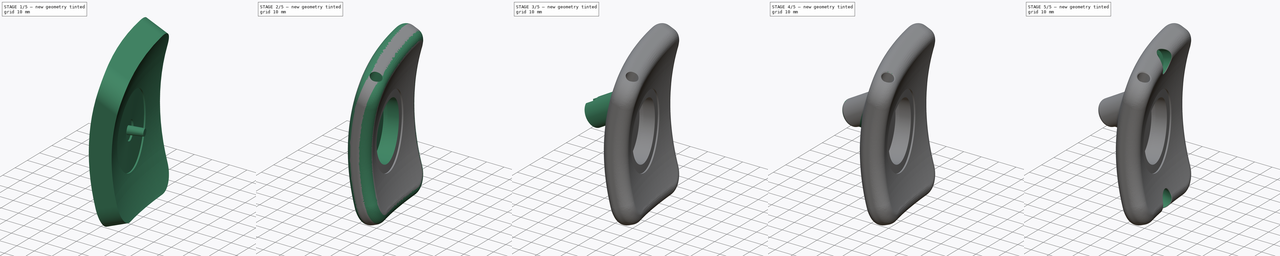
[diagram: build sequence overview — one tinted view per stage of 5, left to right]
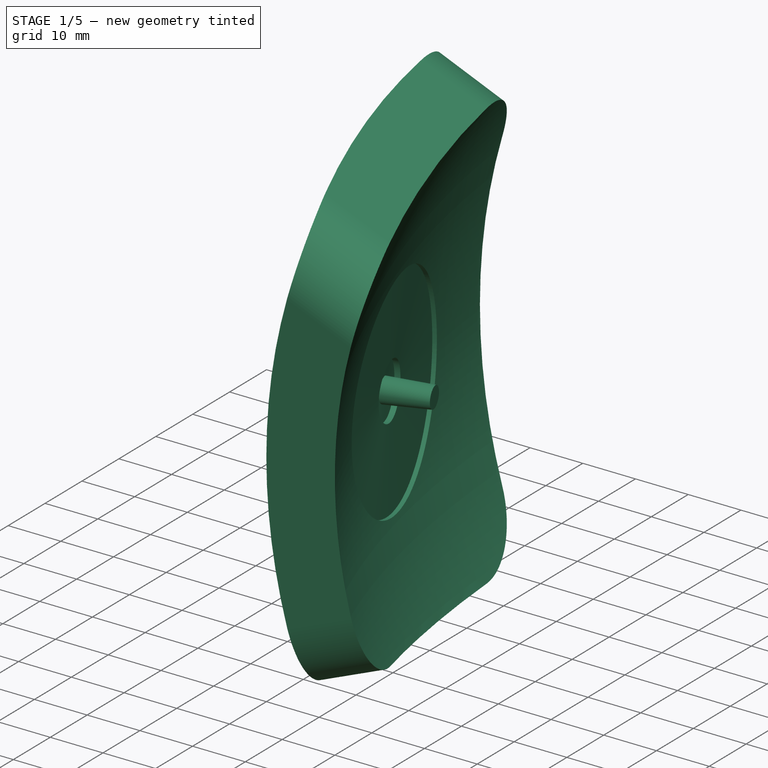
[diagram: stage 1 of 5 — iso view after this stage's code; geometry added in this stage tinted green]
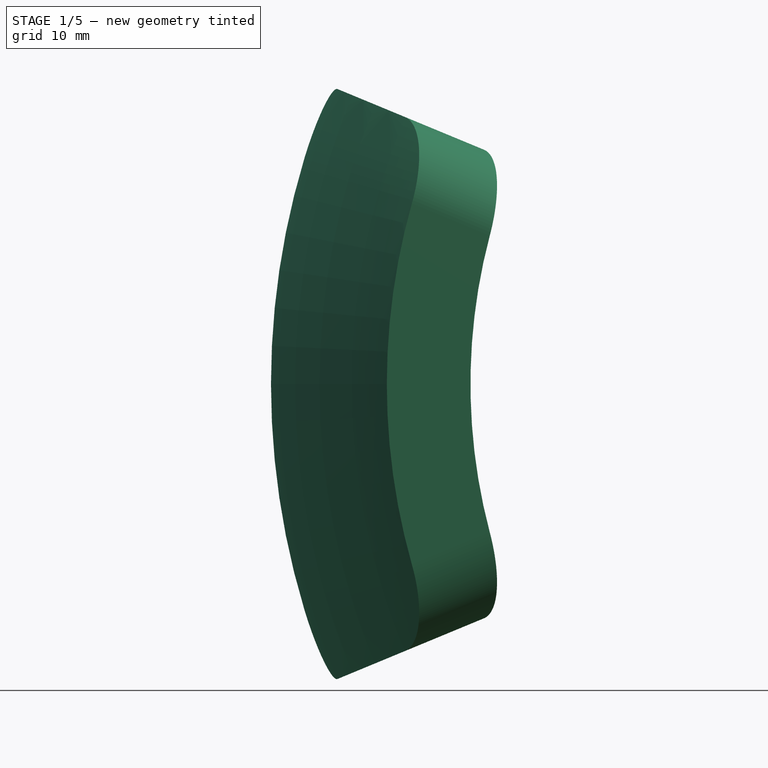
[diagram: stage 1 of 5 — front view after this stage's code; geometry added in this stage tinted green]
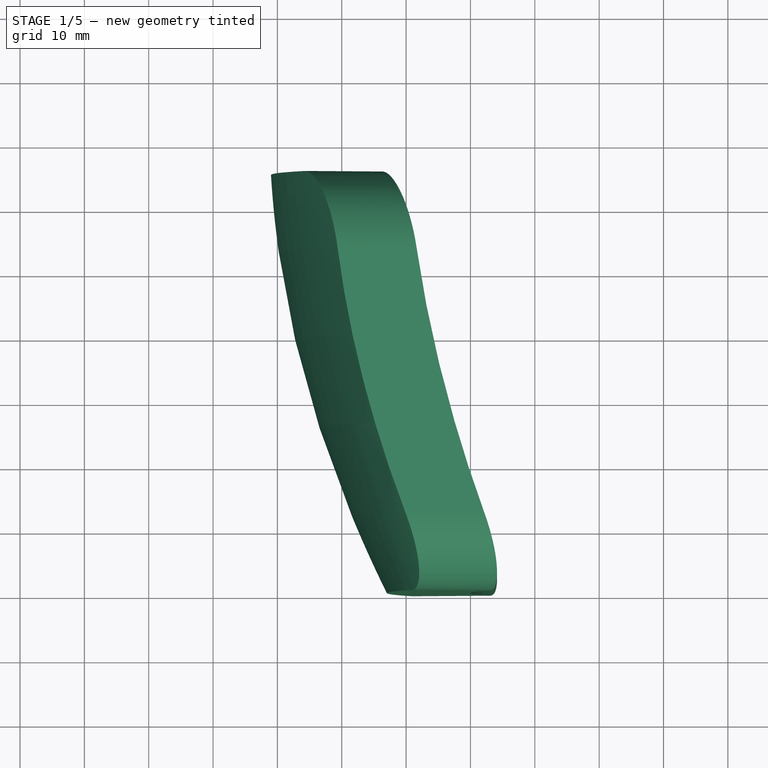
[diagram: stage 1 of 5 — top view after this stage's code; geometry added in this stage tinted green]
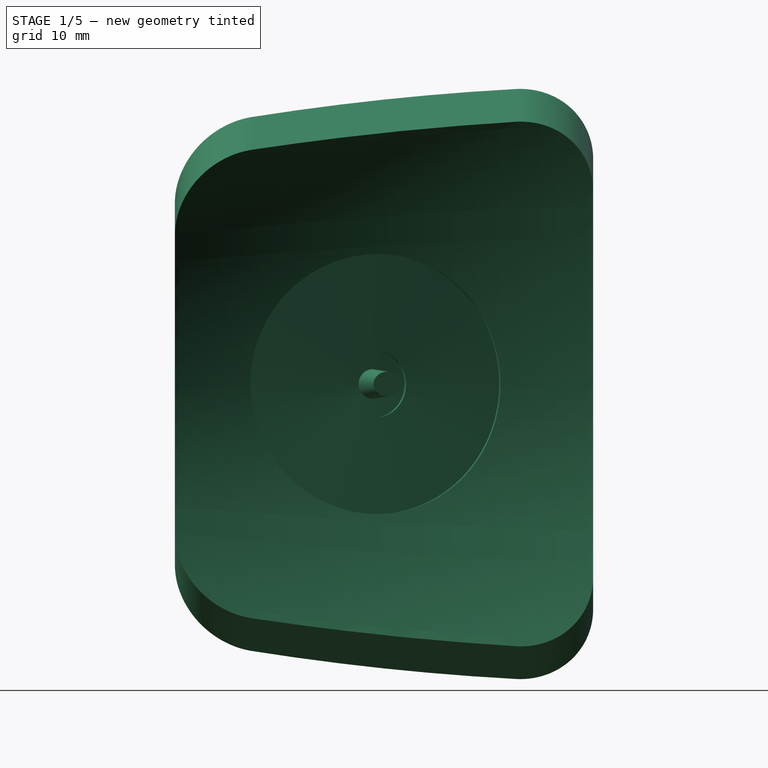
[diagram: stage 1 of 5 — right view after this stage's code; geometry added in this stage tinted green]
FCSTD DOCUMENT  (FreeCAD 0.17R13541 (Git))
Label: left_patch_v4
License: All rights reserved
LicenseURL: http://en.wikipedia.org/wiki/All_rights_reserved
objects: Sketcher::SketchObject×15, PartDesign::Plane×6, PartDesign::Fillet×6, PartDesign::Pocket×5, PartDesign::Line×2, PartDesign::Pad×2, PartDesign::SubtractiveLoft×2, PartDesign::Groove×2, PartDesign::Chamfer×2, PartDesign::Revolution×1, PartDesign::SubtractivePipe×1, PartDesign::Mirrored×1, PartDesign::Body×1
note: 59 computed .brp shape members not serialized (recipe doc carries the construction recipe); baked Part::Feature solids carry a one-line shape summary decoded from their .brp

FEATURE [Sketcher::SketchObject] Sketch
  MapMode = 5
  Support = -> [XY_Plane]
  sketch-geometry (14):
    g0: LineSegment StartX=-103 StartY=0 StartZ=0 EndX=-90 EndY=0 EndZ=0
    g1: LineSegment StartX=-121 StartY=65 StartZ=0 EndX=-108 EndY=65 EndZ=0
    g2: Circle [constr] CenterX=-121 CenterY=65 CenterZ=0 NormalX=0 NormalY=0 NormalZ=1 AngleXU=0 Radius=1
    g3: Circle [constr] CenterX=-119 CenterY=32.5 CenterZ=0 NormalX=0 NormalY=0 NormalZ=1 AngleXU=0 Radius=1
    g4: Circle [constr] CenterX=-103 CenterY=0 CenterZ=0 NormalX=0 NormalY=0 NormalZ=1 AngleXU=0 Radius=1
    g5: BSplineCurve PolesCount=3 KnotsCount=2 Degree=2 IsPeriodic=0
    g6: GeomPoint [constr] X=-121 Y=65 Z=0
    g7: GeomPoint [constr] X=-103 Y=0 Z=0
    g8: Circle [constr] CenterX=-108 CenterY=65 CenterZ=0 NormalX=0 NormalY=0 NormalZ=1 AngleXU=0 Radius=1
    g9: Circle [constr] CenterX=-105 CenterY=32.5 CenterZ=0 NormalX=0 NormalY=0 NormalZ=1 AngleXU=0 Radius=1
    g10: Circle [constr] CenterX=-90 CenterY=0 CenterZ=0 NormalX=0 NormalY=0 NormalZ=1 AngleXU=0 Radius=1
    g11: BSplineCurve PolesCount=3 KnotsCount=2 Degree=2 IsPeriodic=0
    g12: GeomPoint [constr] X=-108 Y=65 Z=0
    g13: GeomPoint [constr] X=-90 Y=0 Z=0
  constraints (32):
    c: Horizontal(g0)
    c: Horizontal(g1)
    c: Coincident(g2,g1)
    c: Radius(g2) = 1
    c: Equal(g2,g3)
    c: Equal(g2,g4)
    c: Coincident(g4,g0)
    c: InternalAlignment(g2,g5)
    c: InternalAlignment(g3,g5)
    c: InternalAlignment(g4,g5)
    c: InternalAlignment(g6,g5)
    c: InternalAlignment(g7,g5)
    c: Coincident(g8,g1)
    c: Radius(g8) = 1
    c: Equal(g8,g9)
    c: Equal(g8,g10)
    c: Coincident(g10,g0)
    c: InternalAlignment(g8,g11)
    c: InternalAlignment(g9,g11)
    c: InternalAlignment(g10,g11)
    c: InternalAlignment(g12,g11)
    c: InternalAlignment(g13,g11)
    c: DistanceX(g1,g1) = 13  'upper thickness'
    c: DistanceX(g0,g0) = 13  'lower thickness'
    c: DistanceY(g0,g1) = 65
    c: DistanceY(g0,g-1) = 0
    c: DistanceY(g0,g9) = 32.5
    c: DistanceY(g0,g3) = 32.5
    c: DistanceX(g0,g-1) = 90  'lower radius'
    c: DistanceX(g3,g9) = 14  'middle thickness'
    c: DistanceX(g9,g0) = 15  'middle radius difference'
    c: DistanceX(g1,g0) = 18  'upper radius difference'
FEATURE [PartDesign::Revolution] Revolution
  Angle = 45
  Axis = (0,1,0)
  Base = (0,0,0)
  Midplane = true
  Profile = -> Sketch
  ReferenceAxis = -> Sketch [V_Axis]
FEATURE [PartDesign::Line] DatumLine
  AttacherType = Attacher::AttachEngineLine
  AttachmentOffset = pos=(60,0,0) rot=(0,1,0;0.279253rad)
  MapMode = 29
  Placement = pos=(0,60,0) rot=(0.470251,0.624045,0.624045;2.26246rad)
  Support = -> [X_Axis]
FEATURE [PartDesign::Plane] DatumPlane001
  AttachmentOffset = pos=(0,0,-98) rot=(0,0,1;0rad)
  MapMode = 2
  Placement = pos=(-94.2036,32.9875,0) rot=(0.470251,0.624045,0.624045;2.26246rad)
  Support = -> [DatumLine]
FEATURE [Sketcher::SketchObject] Sketch017
  MapMode = 5
  Placement = pos=(-94.2036,32.9875,0) rot=(0.470251,0.624045,0.624045;2.26246rad)
  Support = -> [DatumPlane001]
  sketch-geometry (1):
    g0: Circle CenterX=0 CenterY=0 CenterZ=0 NormalX=0 NormalY=0 NormalZ=1 AngleXU=0 Radius=19
  constraints (2):
    c: Coincident(g0,g-1)
    c: Radius(g0) = 19
FEATURE [PartDesign::Pad] Pad001
  BaseFeature = -> Revolution
  Length = 20
  Length2 = 100
  Profile = -> Sketch017
  Type = 3
  UpToFace = -> Revolution [Face3]
FEATURE [Sketcher::SketchObject] Sketch018
  ExternalGeometry = -> [DatumLine]
  MapMode = 5
  Support = -> [XY_Plane]
  sketch-geometry (8):
    g0: LineSegment [constr] StartX=-100.16 StartY=31.2796 StartZ=0 EndX=-94.5921 EndY=11.8621 EndZ=0
    g1: LineSegment StartX=-94.5921 StartY=11.8621 StartZ=0 EndX=-95.7456 EndY=11.5313 EndZ=0
    g2: LineSegment StartX=-95.7456 StartY=11.5313 StartZ=0 EndX=-99.8802 EndY=25.9503 EndZ=0
    g3: LineSegment StartX=-99.8802 StartY=25.9503 StartZ=0 EndX=-100.841 EndY=25.6746 EndZ=0
    g4: LineSegment StartX=-100.841 StartY=25.6746 StartZ=0 EndX=-101.668 EndY=28.5584 EndZ=0
    g5: LineSegment StartX=-101.668 StartY=28.5584 StartZ=0 EndX=-91.8635 EndY=31.3699 EndZ=0
    g6: LineSegment StartX=-91.8635 StartY=31.3699 StartZ=0 EndX=-86.902 EndY=14.0672 EndZ=0
    g7: LineSegment StartX=-86.902 StartY=14.0672 StartZ=0 EndX=-94.5921 EndY=11.8621 EndZ=0
  constraints (24):
    c: PointOnObject(g0,g-3)
    c: Perpendicular(g-3,g0)
    c: Distance(g0) = 20.2
    c: Coincident(g0,g1)
    c: Coincident(g1,g2)
    c: Coincident(g2,g3)
    c: Coincident(g3,g4)
    c: Coincident(g4,g5)
    c: Coincident(g5,g6)
    c: Coincident(g6,g7)
    c: Coincident(g7,g1)
    c: Perpendicular(g0,g1)
    c: Perpendicular(g0,g3)
    c: Perpendicular(g0,g5)
    c: Perpendicular(g0,g7)
    c: Parallel(g6,g0)
    c: Parallel(g2,g0)
    c: Parallel(g4,g0)
    c: Distance(g1) = 1.2
    c: Distance(g2) = 15
    c: Distance(g3) = 1
    c: DistanceX(g0) = -100.16
    c: Distance(g6) = 18
    c: Distance(g7) = 8
FEATURE [PartDesign::SubtractivePipe] SubtractivePipe
  AuxilleryCurvelinear = true
  AuxillerySpineTangent = false
  BaseFeature = -> Pad001
  Binormal = (0,0,0)
  Mode = 0
  Profile = -> Sketch018
  Refine = true
  Spine = -> Pad001 [Edge13,Edge14]
  SpineTangent = false
  Transformation = 0
  Transition = 0
FEATURE [Sketcher::SketchObject] Sketch019
  MapMode = 5
  Placement = pos=(-94.2036,32.9875,0) rot=(0.470251,0.624045,0.624045;2.26246rad)
  Support = -> [DatumPlane001]
  sketch-geometry (1):
    g0: Circle CenterX=0 CenterY=0 CenterZ=0 NormalX=0 NormalY=0 NormalZ=1 AngleXU=0 Radius=16
  constraints (2):
    c: Coincident(g0,g-1)
    c: Radius(g0) = 16
FEATURE [PartDesign::Plane] DatumPlane002
  AttachmentOffset = pos=(0,0,-18) rot=(0,0,1;0rad)
  MapMode = 4
  Placement = pos=(4.96147,42.6973,0) rot=(-0.515639,-0.684276,-0.515639;1.9414rad)
  Support = -> [DatumLine]
FEATURE [Sketcher::SketchObject] Sketch027
  MapMode = 5
  Placement = pos=(4.96147,42.6973,0) rot=(-0.515639,-0.684276,-0.515639;1.9414rad)
  Support = -> [DatumPlane002]
  sketch-geometry (1):
    g0: Circle CenterX=0 CenterY=-113.122 CenterZ=0 NormalX=0 NormalY=0 NormalZ=1 AngleXU=0 Radius=1.5
  constraints (2):
    c: PointOnObject(g0,g-2)
    c: Radius(g0) = 1.5
FEATURE [PartDesign::Plane] DatumPlane003
  AttachmentOffset = pos=(0,0,0) rot=(0,1,0;0.05236rad)
  MapMode = 5
  Placement = pos=(0,0,0) rot=(0,1,0;0.05236rad)
  Support = -> [XY_Plane]
FEATURE [PartDesign::Plane] DatumPlane004
  AttachmentOffset = pos=(0,0,123) rot=(0,-1,0;0.785398rad)
  MapMode = 5
  Placement = pos=(0,0,123) rot=(0,-1,0;0.785398rad)
  Support = -> [XY_Plane]
FEATURE [PartDesign::Line] DatumLine001
  AttacherType = Attacher::AttachEngineLine
  AttachmentOffset = pos=(5,0,-21) rot=(1,0,0;1.5708rad)
  MapMode = 16
  Placement = pos=(5.78838,39.8135,5) rot=(0.137845,-0.980815,0.137845;1.59017rad)
  Support = -> [DatumLine]
FEATURE [PartDesign::Fillet] Fillet019
  Base = -> SubtractivePipe [Edge7,Edge6,Edge10,Edge9]
  BaseFeature = -> SubtractivePipe
  Radius = 12
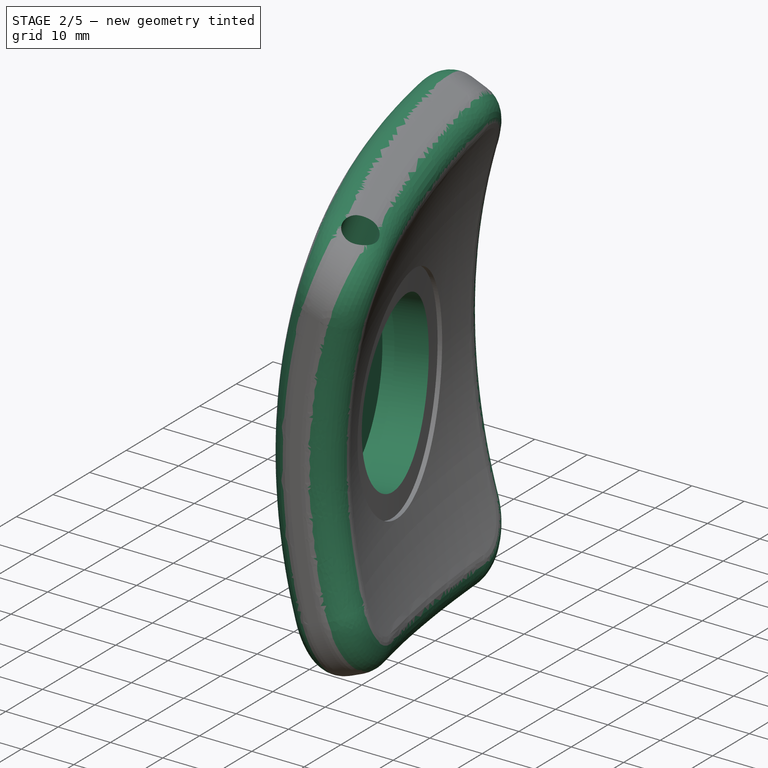
[diagram: stage 2 of 5 — iso view after this stage's code; geometry added in this stage tinted green]
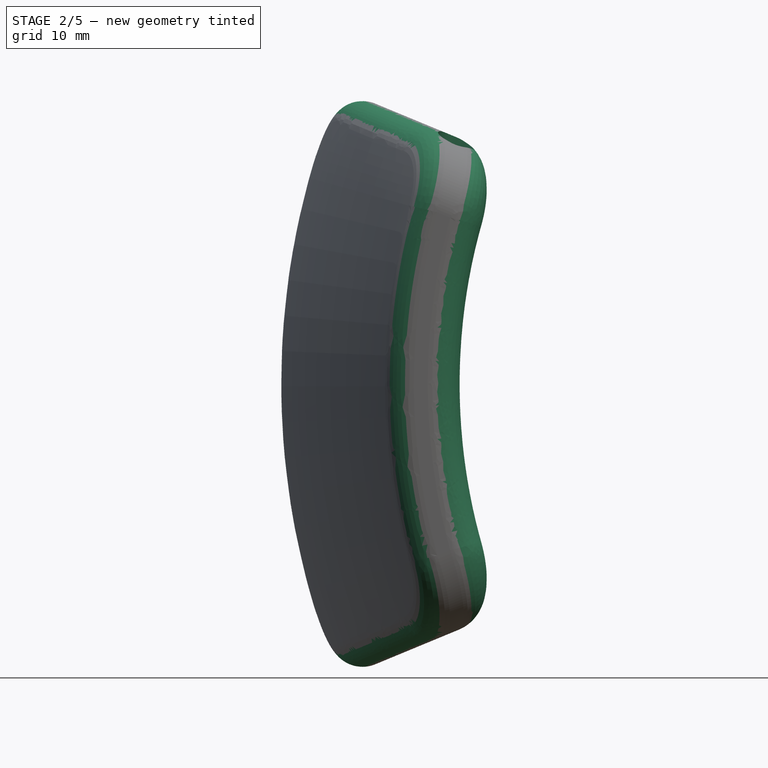
[diagram: stage 2 of 5 — front view after this stage's code; geometry added in this stage tinted green]
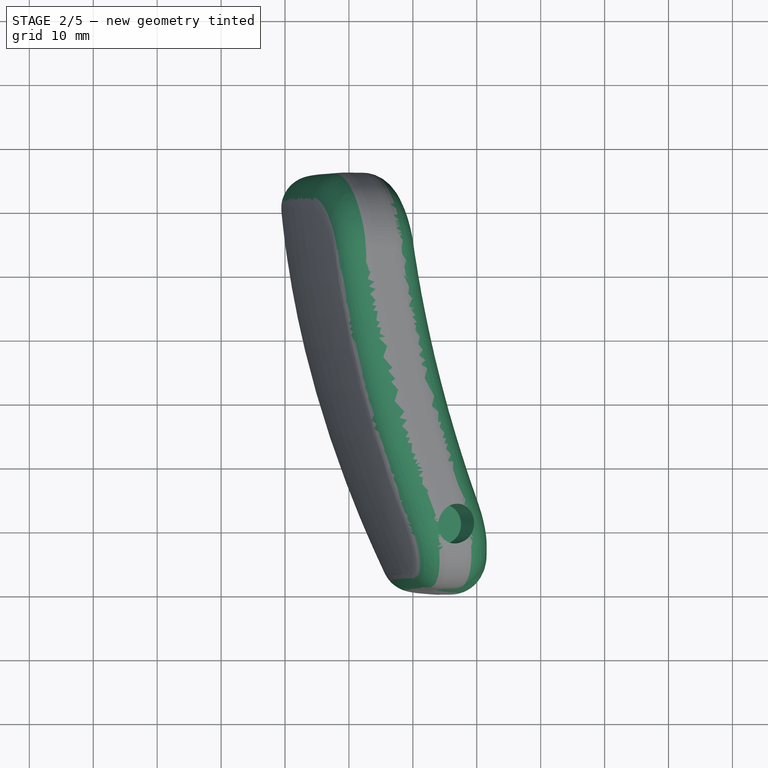
[diagram: stage 2 of 5 — top view after this stage's code; geometry added in this stage tinted green]
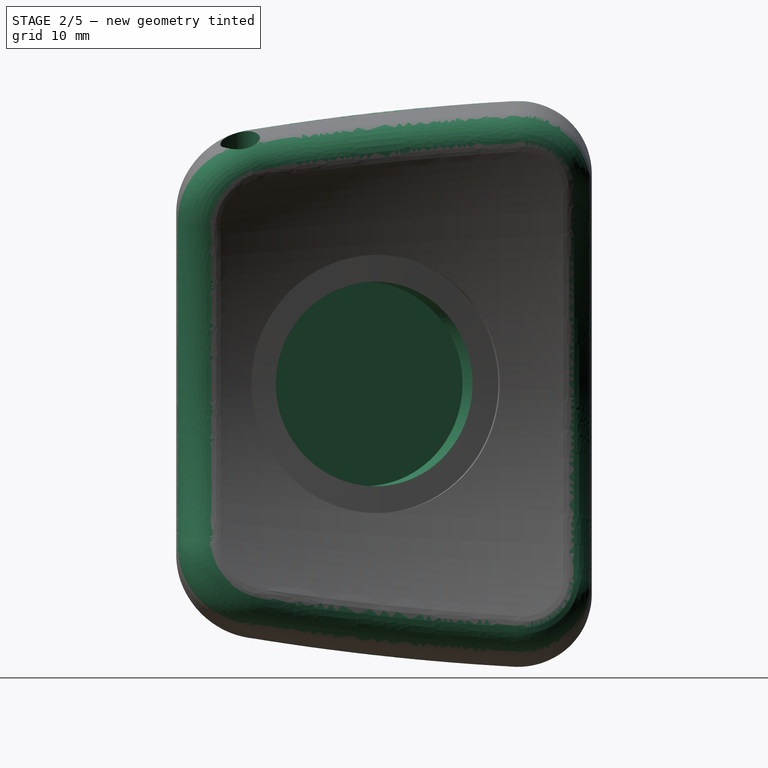
[diagram: stage 2 of 5 — right view after this stage's code; geometry added in this stage tinted green]
FEATURE [PartDesign::Pocket] Pocket007
  BaseFeature = -> Fillet019
  Length = 30
  Length2 = 100
  Midplane = true
  Profile = -> Sketch019
  Refine = true
  Type = 0
FEATURE [Sketcher::SketchObject] Sketch020
  ExternalGeometry = -> [Pocket007]
  MapMode = 5
  Placement = pos=(-92.725,-26.5885,0) rot=(0.470251,0.624045,0.624045;2.26246rad)
  Support = -> [Pocket007]
  sketch-geometry (2):
    g0: Circle CenterX=57.6757 CenterY=0 CenterZ=0 NormalX=0 NormalY=0 NormalZ=1 AngleXU=0 Radius=16
    g1: Circle CenterX=57.6757 CenterY=0 CenterZ=0 NormalX=0 NormalY=0 NormalZ=1 AngleXU=0 Radius=18
  constraints (4):
    c: Coincident(g0,g-3)
    c: Coincident(g1,g0)
    c: Radius(g0) = 16
    c: Radius(g1) = 18
FEATURE [PartDesign::Pocket] Pocket008
  BaseFeature = -> Pocket007
  Length = 2
  Length2 = 2
  Profile = -> Sketch020
  Refine = true
  Type = 4
FEATURE [PartDesign::Fillet] Fillet  label="Vorderkannte innen"
  Base = -> Pocket008 [Edge12,Edge11]
  BaseFeature = -> Pocket008
  Radius = 5
FEATURE [PartDesign::Fillet] Fillet015  label="Vorderkante aussen"
  Base = -> Fillet [Edge13]
  BaseFeature = -> Fillet
  Radius = 5
FEATURE [Sketcher::SketchObject] Sketch025
  MapMode = 5
  Placement = pos=(0,0,0) rot=(0,1,0;0.392699rad)
  Support = -> [Fillet015]
  sketch-geometry (1):
    g0: Circle CenterX=-100.7 CenterY=10 CenterZ=0 NormalX=0 NormalY=0 NormalZ=1 AngleXU=0 Radius=3.1
  constraints (3):
    c: Radius(g0) = 3.1
    c: DistanceY(g-1,g0) = 10
    c: DistanceX(g0,g-1) = 100.7
FEATURE [PartDesign::Pocket] Pocket012
  BaseFeature = -> Fillet015
  Length = 6
  Length2 = 100
  Profile = -> Sketch025
  Type = 0
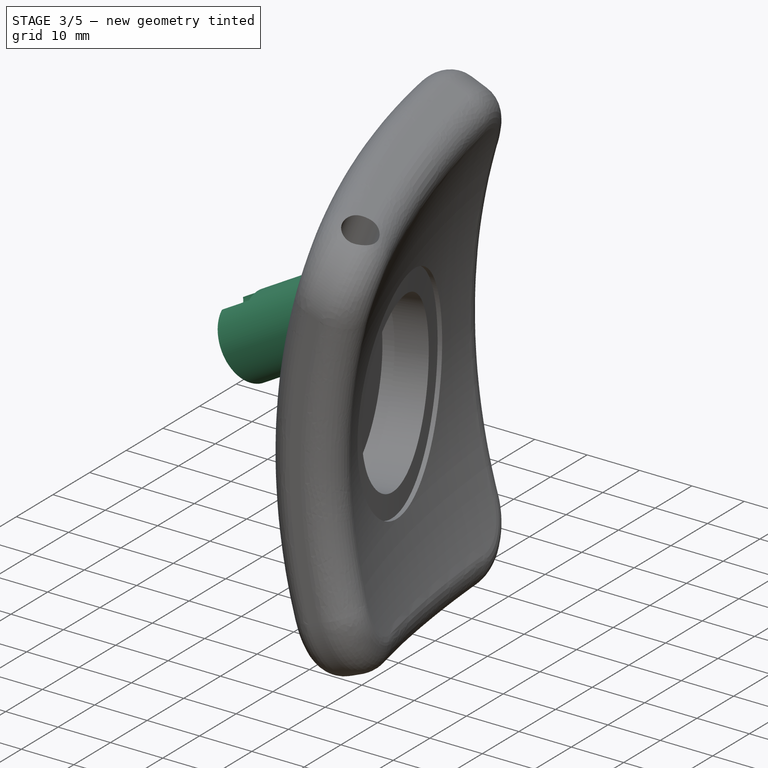
[diagram: stage 3 of 5 — iso view after this stage's code; geometry added in this stage tinted green]
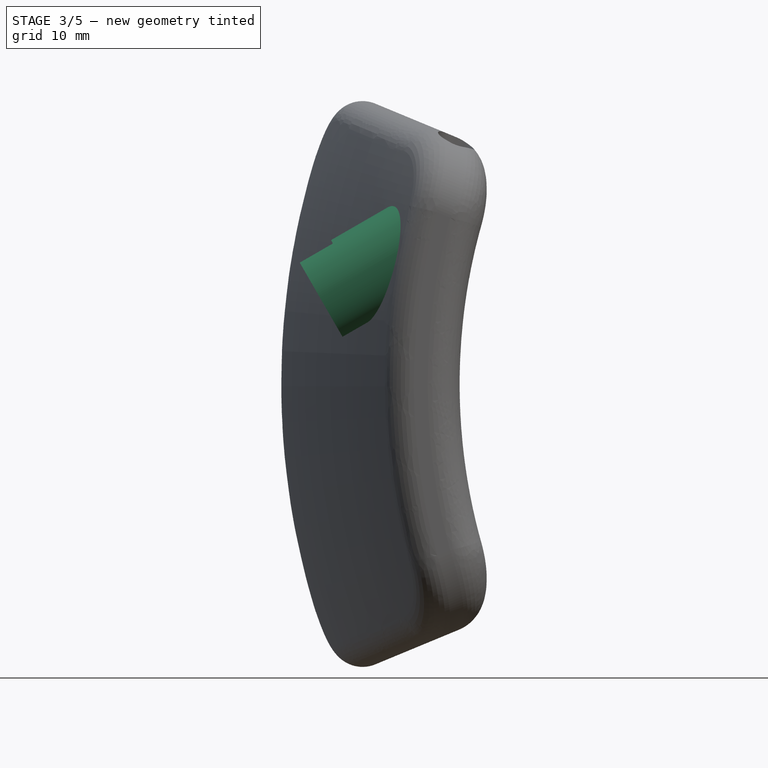
[diagram: stage 3 of 5 — front view after this stage's code; geometry added in this stage tinted green]
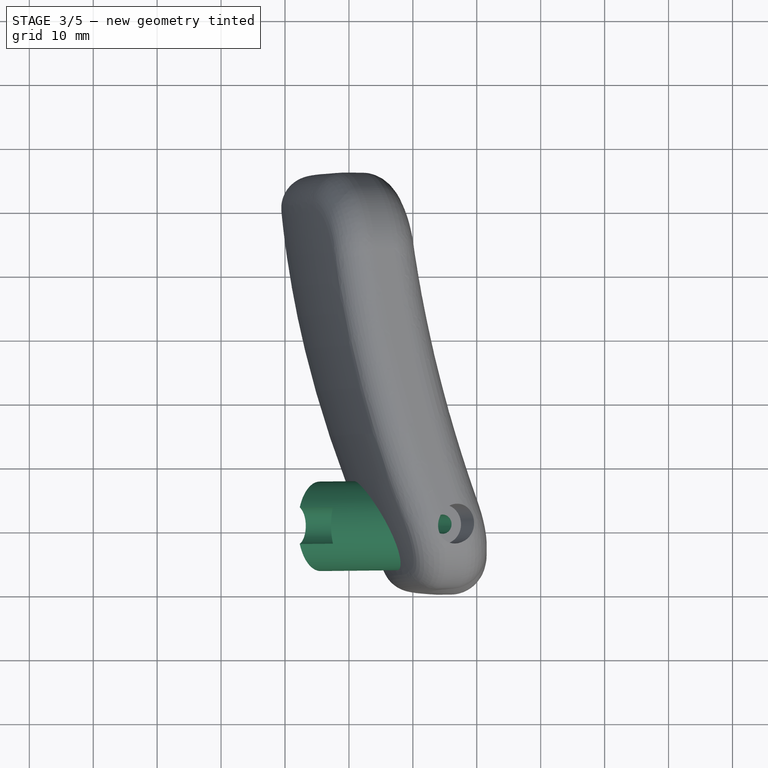
[diagram: stage 3 of 5 — top view after this stage's code; geometry added in this stage tinted green]
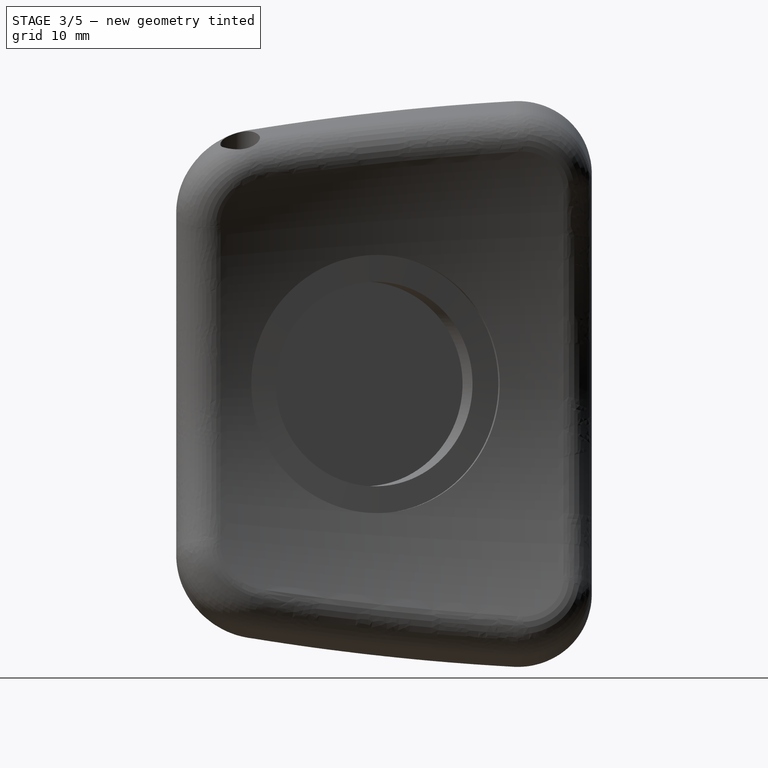
[diagram: stage 3 of 5 — right view after this stage's code; geometry added in this stage tinted green]
FEATURE [Sketcher::SketchObject] Sketch026
  ExternalGeometry = -> [Pocket012]
  MapMode = 5
  Placement = pos=(-2.2961,0,-5.54328) rot=(0,1,0;0.392699rad)
  Support = -> [Pocket012]
  sketch-geometry (1):
    g0: Circle CenterX=-100.7 CenterY=10 CenterZ=0 NormalX=0 NormalY=0 NormalZ=1 AngleXU=0 Radius=1.5
  constraints (2):
    c: Radius(g0) = 1.5
    c: Coincident(g0,g-4)
FEATURE [PartDesign::Pocket] Pocket013
  BaseFeature = -> Pocket012
  Length = 3
  Length2 = 0.5
  Profile = -> Sketch027
  Type = 4
FEATURE [PartDesign::Plane] DatumPlane
  AttachmentOffset = pos=(0,0,-95) rot=(0,1,0;0.523599rad)
  MapMode = 5
  Placement = pos=(-54.5,0,-90.47) rot=(0,1,0;1.0472rad)
  Support = -> [Pocket013]
FEATURE [Sketcher::SketchObject] Sketch028
  MapMode = 5
  Placement = pos=(-54.5,0,-90.47) rot=(0,1,0;1.0472rad)
  Support = -> [DatumPlane]
  sketch-geometry (1):
    g0: Circle CenterX=-120 CenterY=10 CenterZ=0 NormalX=0 NormalY=0 NormalZ=1 AngleXU=0 Radius=7
  constraints (3):
    c: Radius(g0) = 7
    c: DistanceY(g-1,g0) = 10
    c: DistanceX(g0,g-1) = 120
FEATURE [PartDesign::Pad] Pad
  BaseFeature = -> Pocket013
  Length = 30
  Length2 = 100
  Profile = -> Sketch028
  Type = 2
FEATURE [Sketcher::SketchObject] Sketch029
  ExternalGeometry = -> [Pad]
  MapMode = 5
  Placement = pos=(-80.0497,0,-46.2167) rot=(0.654654,-0.654654,-0.377964;2.41886rad)
  Support = -> [Pad]
  sketch-geometry (1):
    g0: Circle CenterX=-10 CenterY=76.5 CenterZ=0 NormalX=0 NormalY=0 NormalZ=1 AngleXU=0 Radius=3.1
  constraints (2):
    c: Coincident(g0,g-3)
    c: Radius(g0) = 3.1
FEATURE [PartDesign::Pocket] Pocket
  BaseFeature = -> Pad
  Length = 6
  Length2 = 100
  Profile = -> Sketch029
  Type = 0
FEATURE [Sketcher::SketchObject] Sketch030
  ExternalGeometry = -> [Pocket]
  MapMode = 5
  Placement = pos=(-74.8535,0,-43.2167) rot=(-0.654654,0.654654,0.377964;3.86433rad)
  Support = -> [Pocket]
  sketch-geometry (1):
    g0: Circle CenterX=-10 CenterY=76.5 CenterZ=0 NormalX=0 NormalY=0 NormalZ=1 AngleXU=0 Radius=1.5
  constraints (2):
    c: Coincident(g0,g-3)
    c: Radius(g0) = 1.5
FEATURE [PartDesign::SubtractiveLoft] SubtractiveLoft
  BaseFeature = -> Pocket
  Closed = false
  Profile = -> Sketch026
  Ruled = false
  Sections = -> [Sketch030]
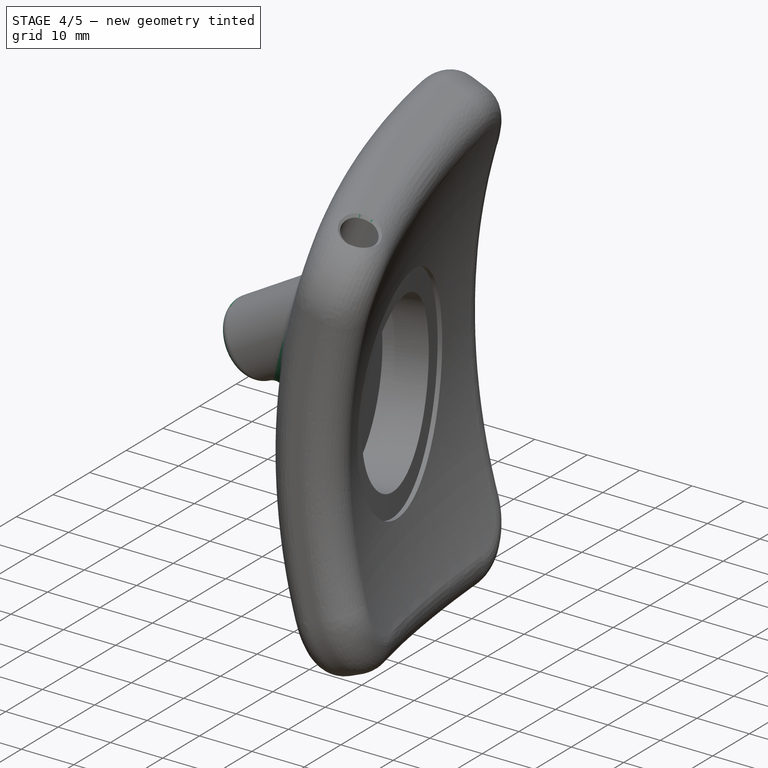
[diagram: stage 4 of 5 — iso view after this stage's code; geometry added in this stage tinted green]
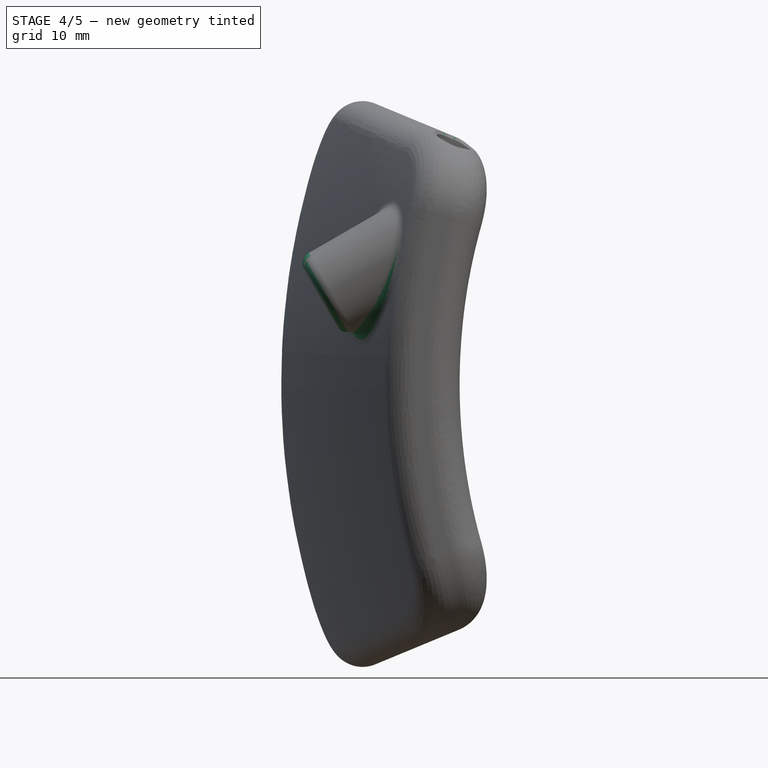
[diagram: stage 4 of 5 — front view after this stage's code; geometry added in this stage tinted green]
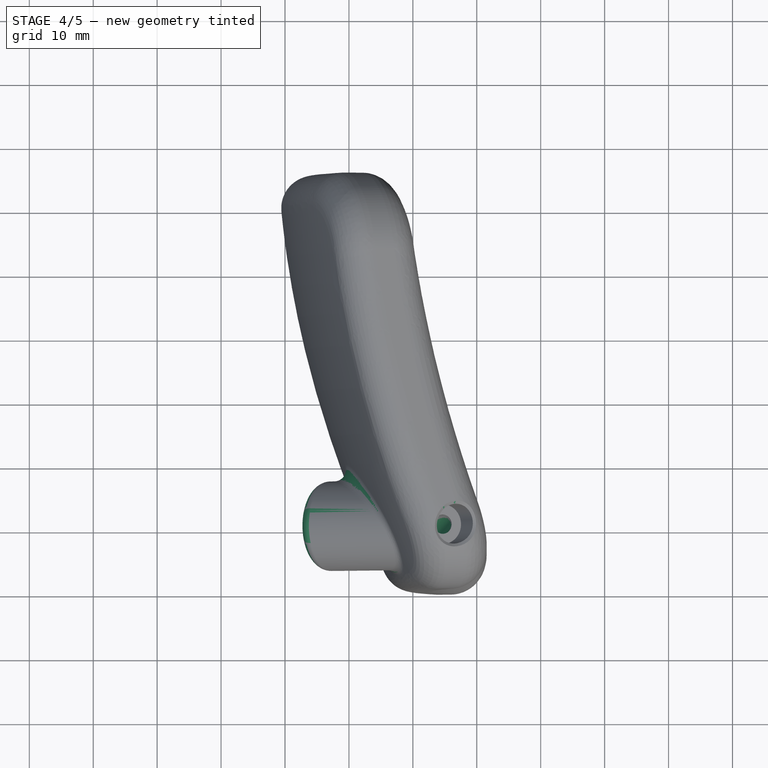
[diagram: stage 4 of 5 — top view after this stage's code; geometry added in this stage tinted green]
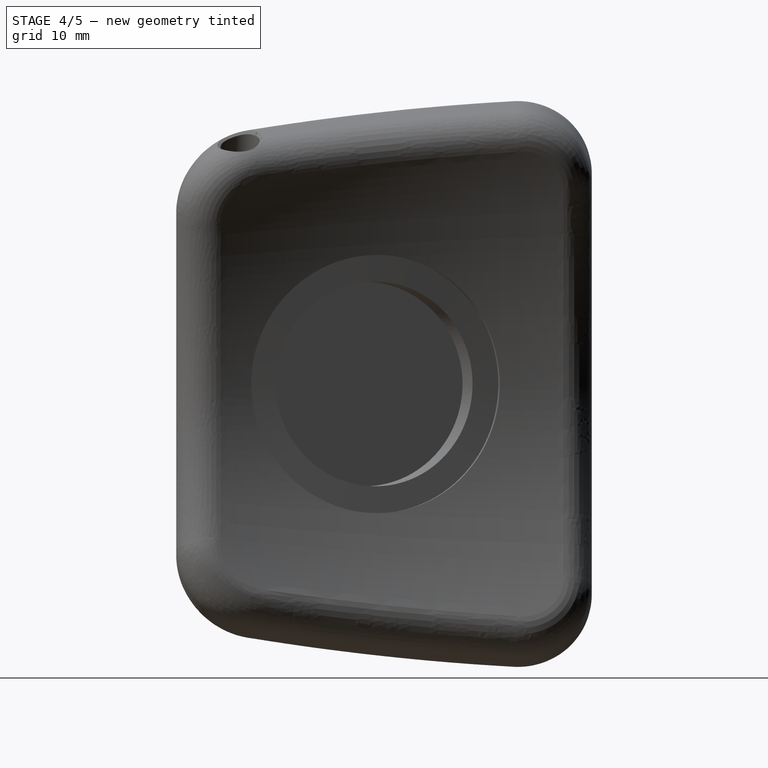
[diagram: stage 4 of 5 — right view after this stage's code; geometry added in this stage tinted green]
FEATURE [Sketcher::SketchObject] Sketch033
  ExternalGeometry = -> [SubtractiveLoft]
  MapMode = 5
  Placement = pos=(-10.1092,35.2549,0) rot=(-0.09889,0.703641,0.703641;3.33873rad)
  Support = -> [SubtractiveLoft]
  sketch-geometry (1):
    g0: Circle CenterX=96.5841 CenterY=0 CenterZ=0 NormalX=0 NormalY=0 NormalZ=1 AngleXU=0 Radius=1.5
  constraints (1):
    c: Radius(g0) = 1.5
FEATURE [PartDesign::Groove] Groove
  Angle = 90
  Axis = (-0.961262,-0.275637,0)
  Base = (5.78838,39.8135,5)
  BaseFeature = -> SubtractiveLoft
  Profile = -> Sketch033
  ReferenceAxis = -> DatumLine001
FEATURE [Sketcher::SketchObject] Sketch034
  ExternalGeometry = -> [Groove]
  MapMode = 5
  Placement = pos=(-2.2961,0,-5.54328) rot=(0,1,0;0.392699rad)
  Support = -> [Groove]
  sketch-geometry (1):
    g0: Circle CenterX=-100.7 CenterY=10 CenterZ=0 NormalX=0 NormalY=0 NormalZ=1 AngleXU=0 Radius=1.51
  constraints (2):
    c: Coincident(g0,g-3)
    c: Radius(g0) = 1.51
FEATURE [Sketcher::SketchObject] Sketch035
  ExternalGeometry = -> [Groove]
  MapMode = 5
  Placement = pos=(-92.725,-26.5885,0) rot=(0.470251,0.624045,0.624045;2.26246rad)
  Support = -> [Groove]
  sketch-geometry (1):
    g0: Circle CenterX=-101.574 CenterY=-3.82646 CenterZ=0 NormalX=0 NormalY=0 NormalZ=1 AngleXU=0 Radius=1.5
  constraints (1):
    c: Radius(g0) = 1.5
FEATURE [PartDesign::SubtractiveLoft] SubtractiveLoft001
  BaseFeature = -> Groove
  Closed = false
  Profile = -> Sketch035
  Refine = true
  Ruled = true
  Sections = -> [Sketch034]
FEATURE [PartDesign::Chamfer] Chamfer
  Base = -> SubtractiveLoft001 [Edge43,Edge76]
  BaseFeature = -> SubtractiveLoft001
  Size = 0.5
FEATURE [PartDesign::Fillet] Fillet017
  Base = -> Chamfer [Edge88]
  BaseFeature = -> Chamfer
  Radius = 2
FEATURE [PartDesign::Fillet] Fillet018
  Base = -> Fillet017 [Edge3]
  BaseFeature = -> Fillet017
  Radius = 2
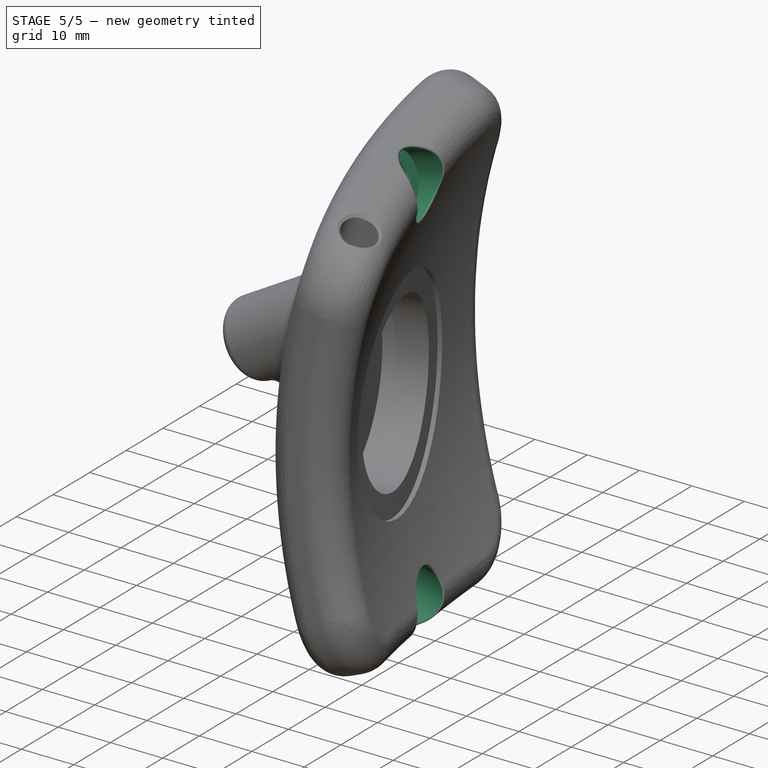
[diagram: stage 5 of 5 — iso view after this stage's code; geometry added in this stage tinted green]
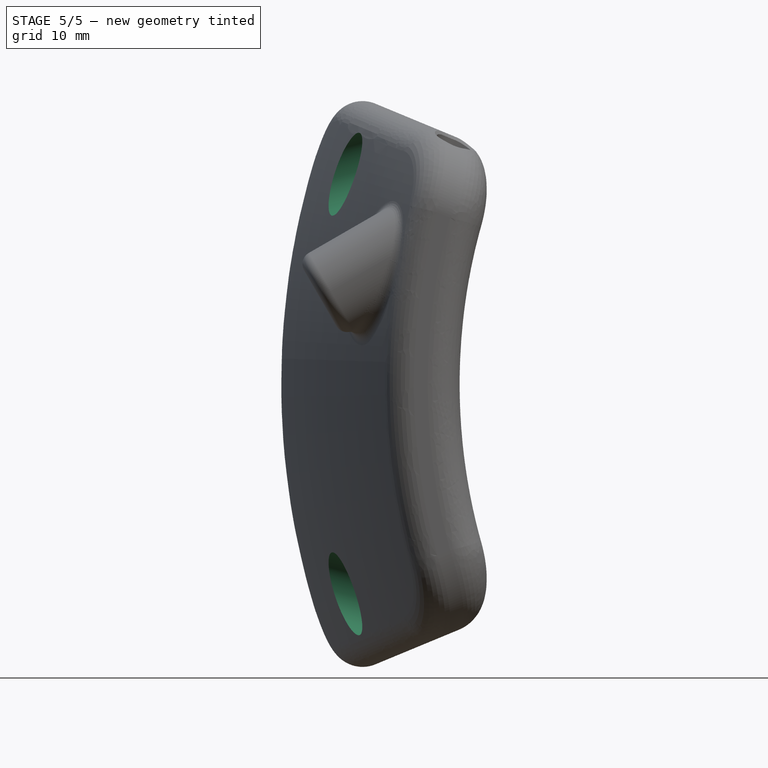
[diagram: stage 5 of 5 — front view after this stage's code; geometry added in this stage tinted green]
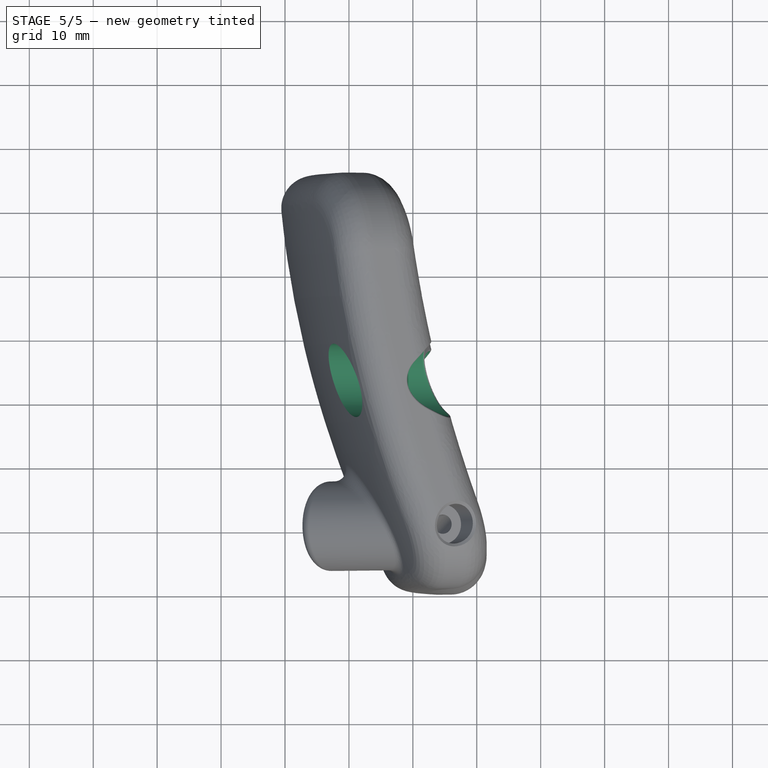
[diagram: stage 5 of 5 — top view after this stage's code; geometry added in this stage tinted green]
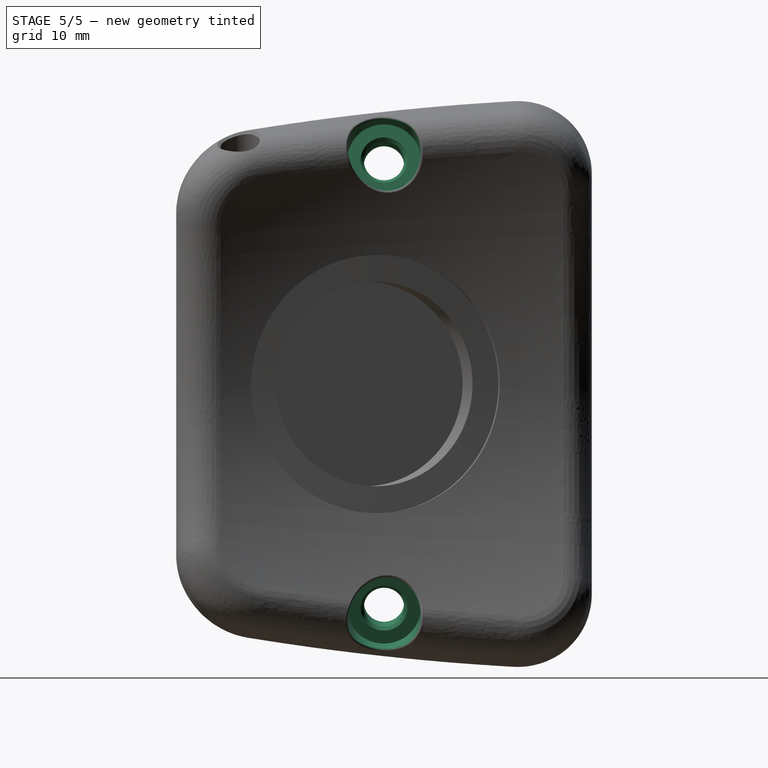
[diagram: stage 5 of 5 — right view after this stage's code; geometry added in this stage tinted green]
FEATURE [PartDesign::Plane] DatumPlane005
  AttachmentOffset = pos=(0,0,-32.5) rot=(0,0,1;0rad)
  MapMode = 5
  Placement = pos=(0,32.5,3e-12) rot=(1,0,0;1.5708rad)
  Support = -> [XZ_Plane]
FEATURE [Sketcher::SketchObject] Sketch036
  MapMode = 5
  Placement = pos=(0,32.5,3e-12) rot=(1,0,0;1.5708rad)
  Support = -> [DatumPlane005]
  sketch-geometry (8):
    g0: LineSegment StartX=-118.637 StartY=30.6472 StartZ=0 EndX=-80 EndY=41 EndZ=0
    g1: LineSegment StartX=-80 StartY=41 StartZ=0 EndX=-81.4882 EndY=46.5541 EndZ=0
    g2: LineSegment StartX=-81.4882 StartY=46.5541 StartZ=0 EndX=-103.705 EndY=40.6012 EndZ=0
    g3: LineSegment StartX=-103.705 StartY=40.6012 StartZ=0 EndX=-103.032 EndY=38.0898 EndZ=0
    g4: LineSegment StartX=-103.032 StartY=38.0898 StartZ=0 EndX=-106.895 EndY=37.0546 EndZ=0
    g5: LineSegment StartX=-106.895 StartY=37.0546 StartZ=0 EndX=-107.568 EndY=39.566 EndZ=0
    g6: LineSegment StartX=-107.568 StartY=39.566 StartZ=0 EndX=-120.125 EndY=36.2013 EndZ=0
    g7: LineSegment StartX=-120.125 StartY=36.2013 StartZ=0 EndX=-118.637 EndY=30.6472 EndZ=0
  constraints (24):
    c: Coincident(g0,g1)
    c: Coincident(g1,g2)
    c: Parallel(g2,g0)
    c: Perpendicular(g0,g1)
    c: Coincident(g2,g3)
    c: Coincident(g3,g4)
    c: Coincident(g4,g5)
    c: Parallel(g5,g1)
    c: Parallel(g4,g0)
    c: Parallel(g1,g3)
    c: Coincident(g5,g6)
    c: Coincident(g6,g7)
    c: Coincident(g7,g0)
    c: Parallel(g7,g1)
    c: Parallel(g6,g0)
    c: Angle(g-1,g0) = 0.261799
    c: Distance(g4) = 4
    c: Distance(g3,g0) = 3.15
    c: Distance(g7) = 5.75
    c: Distance(g6) = 13
    c: Distance(g0) = 40
    c: Distance(g1) = 5.75
    c: DistanceX(g0) = -80
    c: DistanceY(g0) = 41
FEATURE [PartDesign::Groove] Groove001
  Angle = 360
  Axis = (0.965926,0,0.258819)
  Base = (-118.637,32.5,30.6472)
  BaseFeature = -> Fillet018
  Profile = -> Sketch036
  ReferenceAxis = -> Sketch036 [Edge1]
  Refine = true
  Reversed = true
FEATURE [PartDesign::Mirrored] Mirrored
  BaseFeature = -> Groove001
  MirrorPlane = -> XY_Plane
  Originals = -> [Groove001]
  Refine = true
FEATURE [PartDesign::Chamfer] Chamfer001
  Base = -> Mirrored [Face43,Face50]
  BaseFeature = -> Mirrored
  Size = 0.5
FEATURE [PartDesign::Fillet] Fillet020
  Base = -> Chamfer001 [Edge108,Edge129]
  BaseFeature = -> Chamfer001
  Radius = 0.3
FEATURE [PartDesign::Body] Body
  Group = -> [Sketch,Revolution,DatumLine,DatumPlane001,Sketch017,Pad001,Sketch018,SubtractivePipe,Sketch019,Fillet019,Pocket007,Sketch020,Pocket008,Fillet,Fillet015,DatumPlane,Sketch025,Pocket012,Sketch026,DatumPlane002,Sketch027,Pocket013,Sketch028,Pad,Sketch029,Pocket,Sketch030,SubtractiveLoft,DatumPlane003,DatumPlane004,Sketch033,DatumLine001,Groove,Sketch034,Sketch035,SubtractiveLoft001,Chamfer,Fillet017,+7 more]
  Origin = -> Origin
  Tip = -> Fillet020
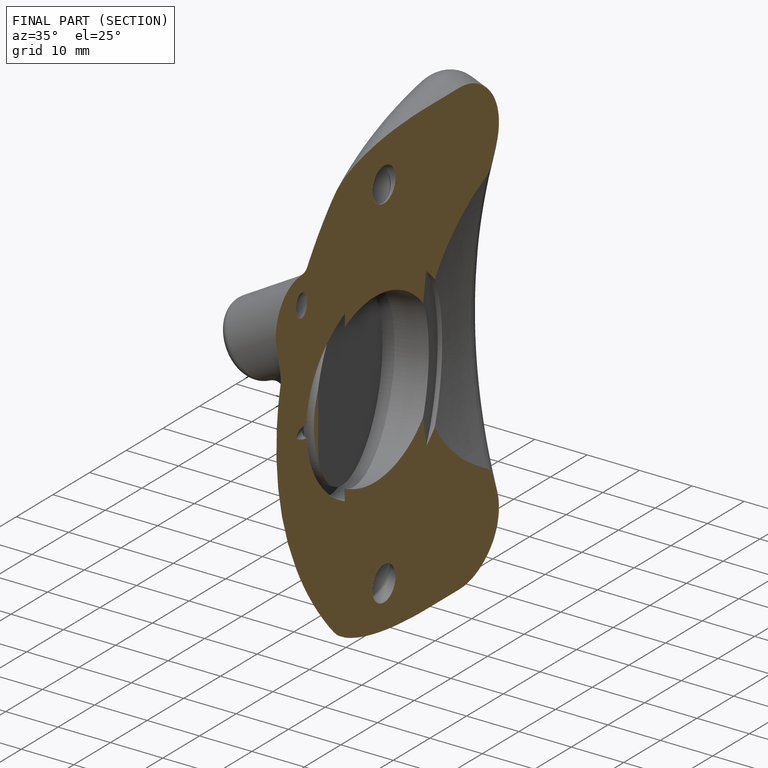
[diagram: finished part — half-section view (interior)]
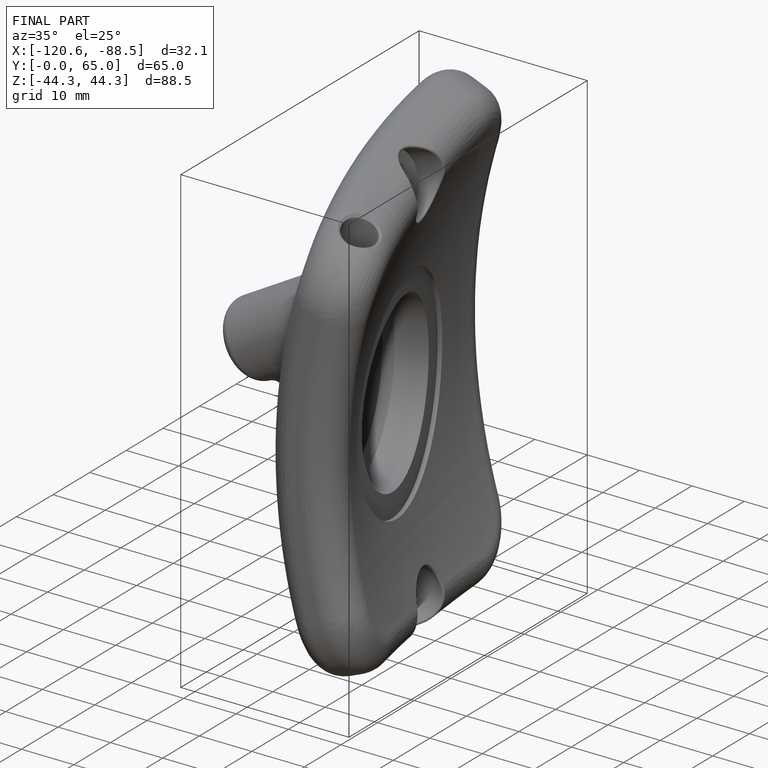
[diagram: finished part — iso view with bounding-box wireframe]
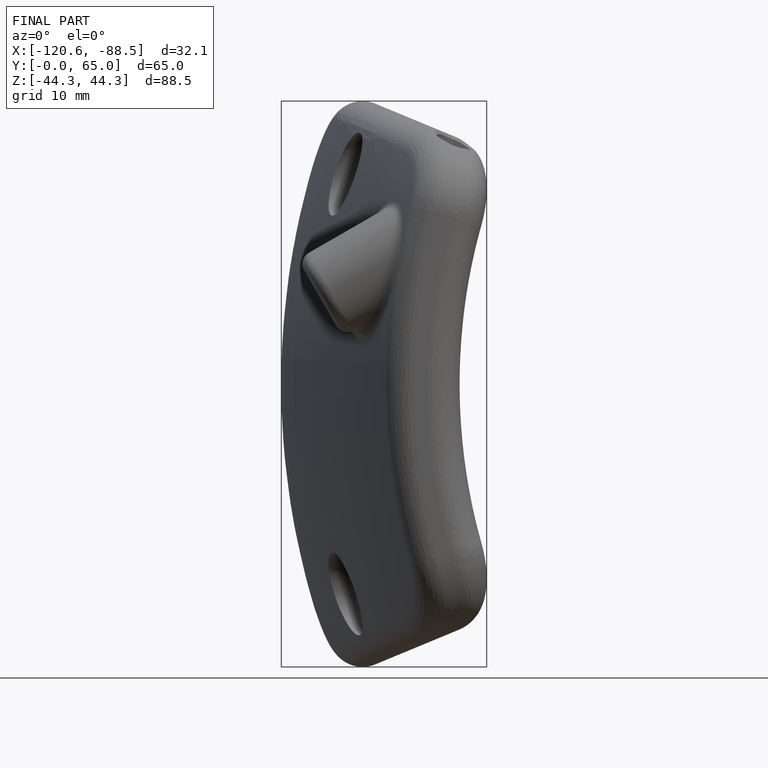
[diagram: finished part — front view with bounding-box wireframe]
